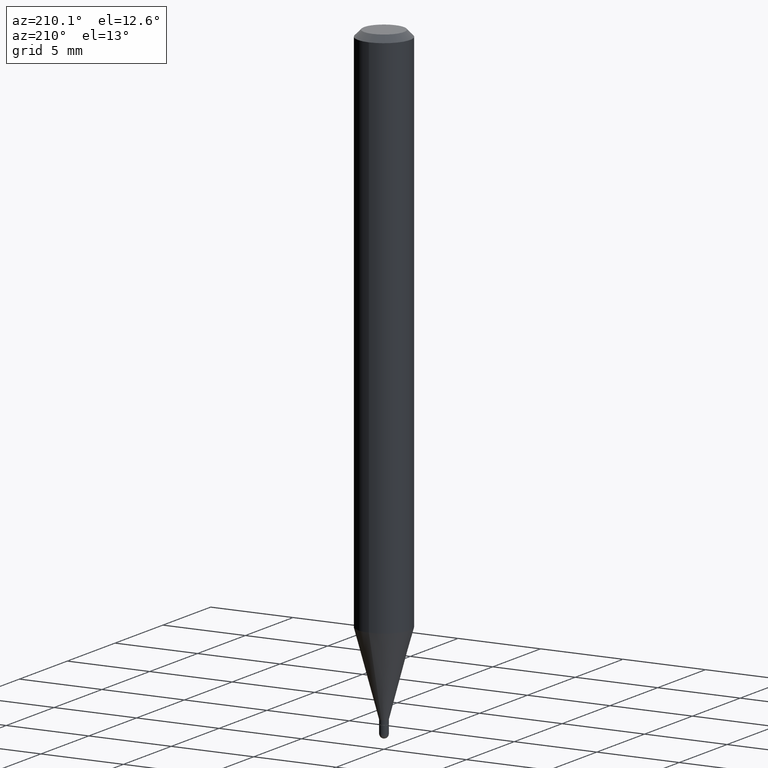
[diagram: clean part render]
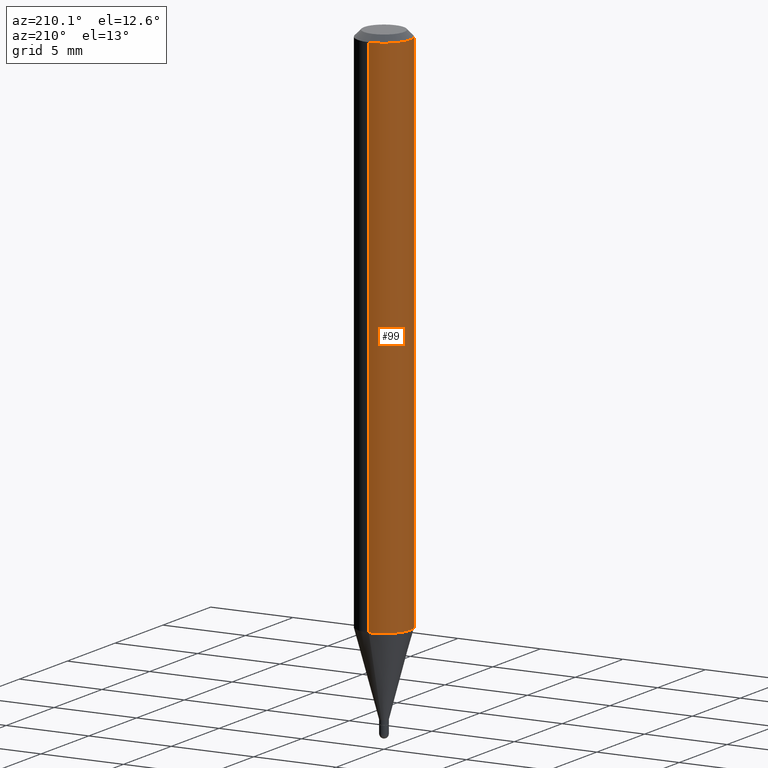
[diagram: same view with one face highlighted and labeled with its STEP entity id]
A machine part, auxiliary view. The second image highlights one B-rep face of the part: STEP entity #99.
In plain terms, the highlighted cylindrical surface (edge-blend (fillet) strip) has radius 1.5875 mm, axis along (-0, 0, 1).
Its self-contained STEP definition (entity closure, byte-faithful):
#4 = DIRECTION ( 'NONE',  ( -2.445483459024879606E-29, 3.491460355142645846E-15, 1.000000000000000000 ) ) ;
#23 = VERTEX_POINT ( 'NONE', #228 ) ;
#27 = CARTESIAN_POINT ( 'NONE',  ( 0.000000000000000000, 0.000000000000000000, 0.000000000000000000 ) ) ;
#47 = CARTESIAN_POINT ( 'NONE',  ( 3.668225188537261132E-31, -5.237190532713885175E-17, -0.01499999999999976179 ) ) ;
#61 = AXIS2_PLACEMENT_3D ( 'NONE', #342, #65, #110 ) ;
#65 = DIRECTION ( 'NONE',  ( -2.445483459024879606E-29, 3.491460355142645846E-15, 1.000000000000000000 ) ) ;
#74 = VERTEX_POINT ( 'NONE', #316 ) ;
#78 = ORIENTED_EDGE ( 'NONE', *, *, #491, .T. ) ;
#99 = ADVANCED_FACE ( 'NONE', ( #381 ), #495, .T. ) ;
#110 = DIRECTION ( 'NONE',  ( -6.982962677686265922E-15, -1.000000000000000000, 4.370956789862821150E-15 ) ) ;
#111 = CIRCLE ( 'NONE', #124, 0.06250000000000000000 ) ;
#124 = AXIS2_PLACEMENT_3D ( 'NONE', #47, #329, #481 ) ;
#129 = DIRECTION ( 'NONE',  ( -6.982962677686265922E-15, -1.000000000000000000, 3.491460355142645846E-15 ) ) ;
#153 = EDGE_CURVE ( 'NONE', #198, #23, #288, .T. ) ;
#171 = VECTOR ( 'NONE', #4, 39.37007874015748143 ) ;
#190 = DIRECTION ( 'NONE',  ( -2.445483459024879606E-29, 3.491460355142645846E-15, 1.000000000000000000 ) ) ;
#191 = EDGE_CURVE ( 'NONE', #360, #23, #111, .T. ) ;
#192 = DIRECTION ( 'NONE',  ( -2.445483459024879606E-29, 3.491460355142645846E-15, 1.000000000000000000 ) ) ;
#198 = VERTEX_POINT ( 'NONE', #283 ) ;
#202 = ORIENTED_EDGE ( 'NONE', *, *, #153, .T. ) ;
#228 = CARTESIAN_POINT ( 'NONE',  ( -4.364351673553912750E-16, -0.06250000000000005551, -0.01499999999999954321 ) ) ;
#232 = VECTOR ( 'NONE', #190, 39.37007874015748143 ) ;
#269 = ORIENTED_EDGE ( 'NONE', *, *, #191, .F. ) ;
#283 = CARTESIAN_POINT ( 'NONE',  ( -4.364351673553607559E-16, -0.06250000000000441314, -1.264067332602633931 ) ) ;
#288 = LINE ( 'NONE', #484, #171 ) ;
#316 = CARTESIAN_POINT ( 'NONE',  ( 4.440892098500933817E-16, 0.06249999999999558686, -1.264067332602634597 ) ) ;
#329 = DIRECTION ( 'NONE',  ( -2.445483459024879606E-29, 3.491460355142645846E-15, 1.000000000000000000 ) ) ;
#342 = CARTESIAN_POINT ( 'NONE',  ( 3.091255752973442998E-29, -4.413440978013010846E-15, -1.264067332602634375 ) ) ;
#353 = EDGE_LOOP ( 'NONE', ( #393, #78, #202, #269 ) ) ;
#360 = VERTEX_POINT ( 'NONE', #383 ) ;
#381 = FACE_OUTER_BOUND ( 'NONE', #353, .T. ) ;
#383 = CARTESIAN_POINT ( 'NONE',  ( 4.440892098500936776E-16, 0.06249999999999993755, -0.01499999999999997863 ) ) ;
#390 = AXIS2_PLACEMENT_3D ( 'NONE', #27, #192, #129 ) ;
#393 = ORIENTED_EDGE ( 'NONE', *, *, #485, .F. ) ;
#420 = CARTESIAN_POINT ( 'NONE',  ( 4.440892098500625669E-16, 0.06250000000000000000, -2.182162721964153654E-16 ) ) ;
#444 = CIRCLE ( 'NONE', #61, 0.06250000000000000000 ) ;
#464 = LINE ( 'NONE', #420, #232 ) ;
#481 = DIRECTION ( 'NONE',  ( -6.982962677686265922E-15, -1.000000000000000000, 3.483106191921935554E-15 ) ) ;
#484 = CARTESIAN_POINT ( 'NONE',  ( -4.364351673553916201E-16, -0.06250000000000000000, 2.182162721964153654E-16 ) ) ;
#485 = EDGE_CURVE ( 'NONE', #74, #360, #464, .T. ) ;
#491 = EDGE_CURVE ( 'NONE', #74, #198, #444, .T. ) ;
#495 = CYLINDRICAL_SURFACE ( 'NONE', #390, 0.06250000000000000000 ) ;